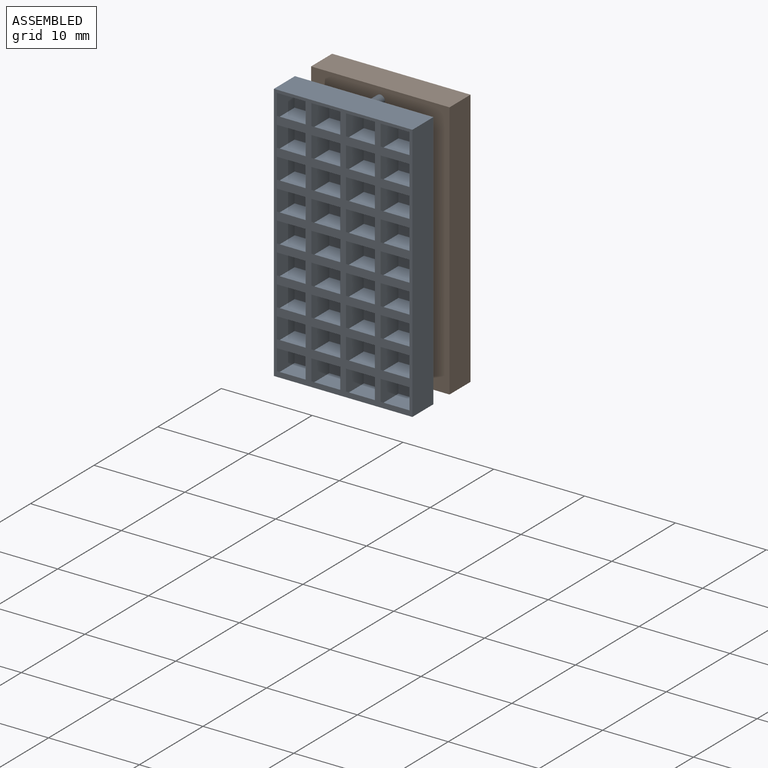
[diagram: assembled view]
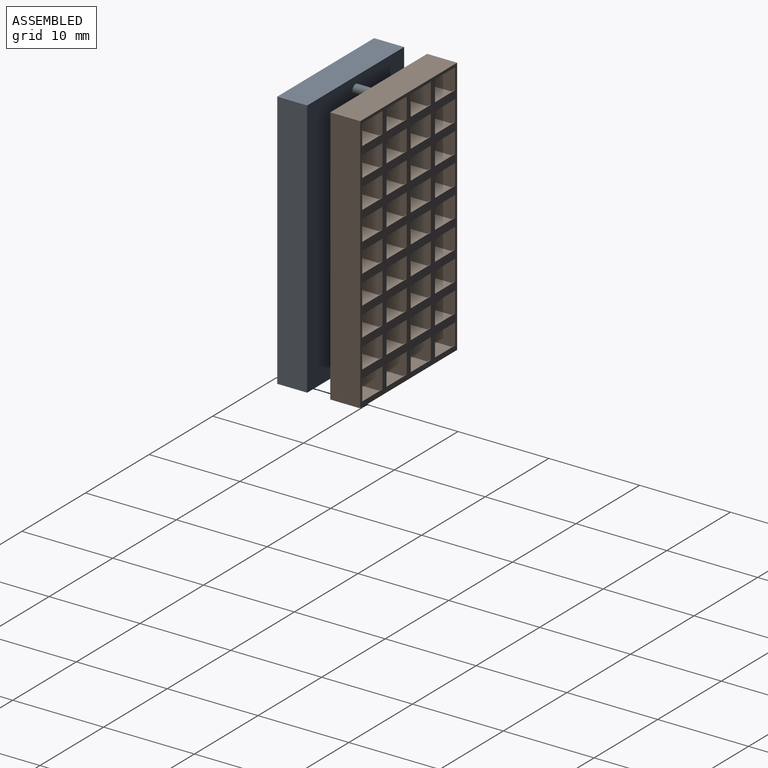
[diagram: assembled view, second angle]
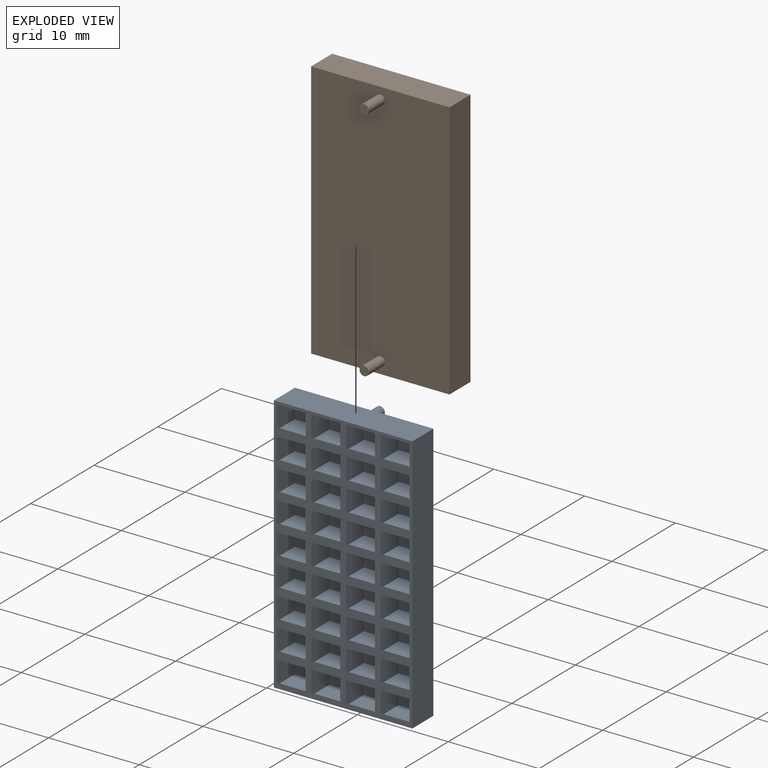
[diagram: exploded view]
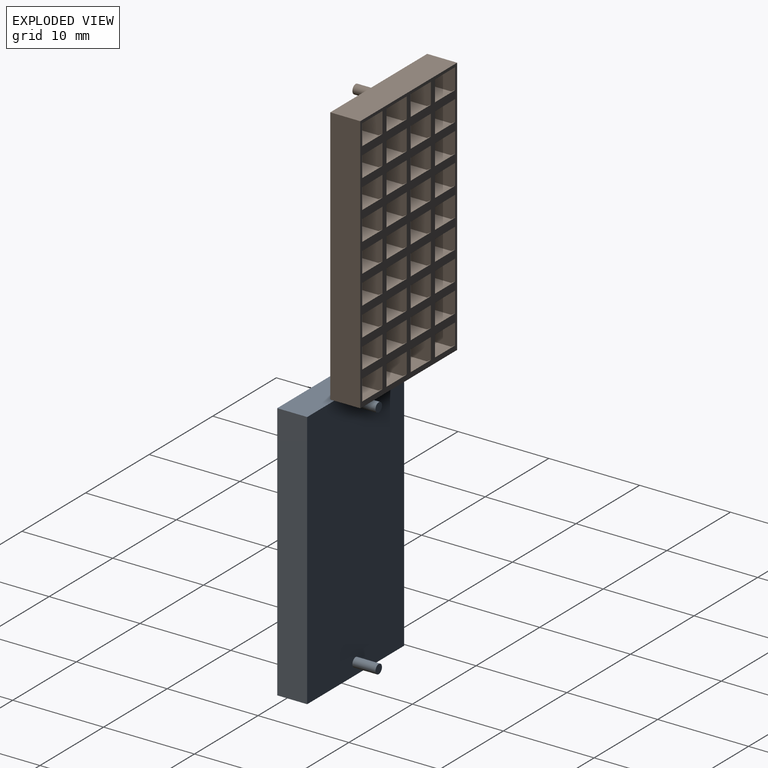
[diagram: exploded view, second angle]
ASSEMBLY  parts=2 mates=3
PART A: 226 faces, bbox 15.2x5.8x28.6 mm
  f0: plane 2.79x2.54mm, normal (1,0,0), area 7mm2, adj f2,f3,f6,f8,f9
  f1: plane 2.79x2.54mm, normal (-1,0,0), area 7mm2, adj f2,f3,f6,f8,f9
  f2: plane 3.18x2.79mm, normal (0,0,-1), area 8.9mm2, adj f0,f1,f6,f9
  f3: plane 3.18x2.35mm, normal (0,0,1), area 7.5mm2, adj f0,f1,f8,f9
  f4: plane 28.58x3.3mm, normal (-1,0,0), area 94.4mm2, adj f5,f6,f7,f117
  f5: plane 15.24x3.3mm, normal (0,0,1), area 50.3mm2, adj f4,f6,f7,f26
  f6: plane 28.58x15.24mm, normal (0,-1,0), area 174.2mm2, adj f0,f1,f2,f4,f5,f8,f10,f11
  f7: plane 28.58x15.24mm, normal (0,1,0), area 433.9mm2, adj f4,f5,f26,f117,f222,f224
  f8: plane 3.18x0.44mm, normal (0,0.5,0.87), area 1.6mm2, adj f0,f1,f3,f6
  f9: plane 3.18x2.54mm, normal (0,-1,0), area 8.1mm2, adj f0,f1,f2,f3
  f10: plane 2.79x2.54mm, normal (1,0,0), area 7mm2, adj f6,f12,f13,f14,f15
  f11: plane 2.79x2.54mm, normal (-1,0,0), area 7mm2, adj f6,f12,f13,f14,f15
  f12: plane 3.18x2.79mm, normal (0,0,-1), area 8.9mm2, adj f6,f10,f11,f15
  f13: plane 3.18x2.35mm, normal (0,0,1), area 7.5mm2, adj f10,f11,f14,f15
  f14: plane 3.18x0.44mm, normal (0,0.5,0.87), area 1.6mm2, adj f6,f10,f11,f13
  f15: plane 3.18x2.54mm, normal (0,-1,0), area 8.1mm2, adj f10,f11,f12,f13
  f16: plane 2.79x2.54mm, normal (1,0,0), area 7mm2, adj f6,f18,f19,f20,f21
  f17: plane 2.79x2.54mm, normal (-1,0,0), area 7mm2, adj f6,f18,f19,f20,f21
  f18: plane 3.18x2.79mm, normal (0,0,-1), area 8.9mm2, adj f6,f16,f17,f21
  f19: plane 3.18x2.35mm, normal (0,0,1), area 7.5mm2, adj f16,f17,f20,f21
  f20: plane 3.18x0.44mm, normal (0,0.5,0.87), area 1.6mm2, adj f6,f16,f17,f19
  f21: plane 3.18x2.54mm, normal (0,-1,0), area 8.1mm2, adj f16,f17,f18,f19
  f22: plane 2.79x2.54mm, normal (1,0,0), area 7mm2, adj f6,f24,f25,f27,f28
  f23: plane 2.79x2.54mm, normal (-1,0,0), area 7mm2, adj f6,f24,f25,f27,f28
  f24: plane 3.18x2.79mm, normal (0,0,-1), area 8.9mm2, adj f6,f22,f23,f28
  f25: plane 3.18x2.35mm, normal (0,0,1), area 7.5mm2, adj f22,f23,f27,f28
  f26: plane 28.58x3.3mm, normal (1,0,0), area 94.4mm2, adj f5,f6,f7,f117
  f27: plane 3.18x0.44mm, normal (0,0.5,0.87), area 1.6mm2, adj f6,f22,f23,f25
  f28: plane 3.18x2.54mm, normal (0,-1,0), area 8.1mm2, adj f22,f23,f24,f25
  f29: plane 2.79x2.54mm, normal (1,0,0), area 7mm2, adj f6,f31,f32,f33,f221
  f30: plane 2.79x2.54mm, normal (-1,0,0), area 7mm2, adj f6,f31,f32,f33,f221
  f31: plane 3.18x2.79mm, normal (0,0,-1), area 8.9mm2, adj f6,f29,f30,f221
  f32: plane 3.18x2.35mm, normal (0,0,1), area 7.5mm2, adj f29,f30,f33,f221
  f33: plane 3.18x0.44mm, normal (0,0.5,0.87), area 1.6mm2, adj f6,f29,f30,f32
  f34: plane 3.18x2.54mm, normal (0,-1,0), area 8.1mm2, adj f217,f218,f219,f220
  f35: plane 2.79x2.54mm, normal (1,0,0), area 7mm2, adj f6,f37,f38,f39,f215
  f36: plane 2.79x2.54mm, normal (-1,0,0), area 7mm2, adj f6,f37,f38,f39,f215
  f37: plane 3.18x2.79mm, normal (0,0,-1), area 8.9mm2, adj f6,f35,f36,f215
  f38: plane 3.18x2.35mm, normal (0,0,1), area 7.5mm2, adj f35,f36,f39,f215
  f39: plane 3.18x0.44mm, normal (0,0.5,0.87), area 1.6mm2, adj f6,f35,f36,f38
  f40: plane 3.18x2.54mm, normal (0,-1,0), area 8.1mm2, adj f211,f212,f213,f214
  f41: plane 2.79x2.54mm, normal (1,0,0), area 7mm2, adj f6,f43,f44,f45,f209
  f42: plane 2.79x2.54mm, normal (-1,0,0), area 7mm2, adj f6,f43,f44,f45,f209
  f43: plane 3.18x2.79mm, normal (0,0,-1), area 8.9mm2, adj f6,f41,f42,f209
  f44: plane 3.18x2.35mm, normal (0,0,1), area 7.5mm2, adj f41,f42,f45,f209
  f45: plane 3.18x0.44mm, normal (0,0.5,0.87), area 1.6mm2, adj f6,f41,f42,f44
  f46: plane 3.18x2.54mm, normal (0,-1,0), area 8.1mm2, adj f205,f206,f207,f208
  f47: plane 2.79x2.54mm, normal (1,0,0), area 7mm2, adj f6,f49,f50,f51,f203
  f48: plane 2.79x2.54mm, normal (-1,0,0), area 7mm2, adj f6,f49,f50,f51,f203
  f49: plane 3.18x2.79mm, normal (0,0,-1), area 8.9mm2, adj f6,f47,f48,f203
  f50: plane 3.18x2.35mm, normal (0,0,1), area 7.5mm2, adj f47,f48,f51,f203
  f51: plane 3.18x0.44mm, normal (0,0.5,0.87), area 1.6mm2, adj f6,f47,f48,f50
  f52: plane 3.18x2.54mm, normal (0,-1,0), area 8.1mm2, adj f199,f200,f201,f202
  f53: plane 2.79x2.54mm, normal (1,0,0), area 7mm2, adj f6,f55,f56,f57,f197
  f54: plane 2.79x2.54mm, normal (-1,0,0), area 7mm2, adj f6,f55,f56,f57,f197
  f55: plane 3.18x2.79mm, normal (0,0,-1), area 8.9mm2, adj f6,f53,f54,f197
  f56: plane 3.18x2.35mm, normal (0,0,1), area 7.5mm2, adj f53,f54,f57,f197
  f57: plane 3.18x0.44mm, normal (0,0.5,0.87), area 1.6mm2, adj f6,f53,f54,f56
  f58: plane 3.18x2.54mm, normal (0,-1,0), area 8.1mm2, adj f193,f194,f195,f196
  f59: plane 2.79x2.54mm, normal (1,0,0), area 7mm2, adj f6,f61,f62,f63,f191
  f60: plane 2.79x2.54mm, normal (-1,0,0), area 7mm2, adj f6,f61,f62,f63,f191
  f61: plane 3.18x2.79mm, normal (0,0,-1), area 8.9mm2, adj f6,f59,f60,f191
  f62: plane 3.18x2.35mm, normal (0,0,1), area 7.5mm2, adj f59,f60,f63,f191
  f63: plane 3.18x0.44mm, normal (0,0.5,0.87), area 1.6mm2, adj f6,f59,f60,f62
  f64: plane 3.18x2.54mm, normal (0,-1,0), area 8.1mm2, adj f187,f188,f189,f190
  f65: plane 2.79x2.54mm, normal (1,0,0), area 7mm2, adj f6,f67,f68,f69,f185
  f66: plane 2.79x2.54mm, normal (-1,0,0), area 7mm2, adj f6,f67,f68,f69,f185
  f67: plane 3.18x2.79mm, normal (0,0,-1), area 8.9mm2, adj f6,f65,f66,f185
  f68: plane 3.18x2.35mm, normal (0,0,1), area 7.5mm2, adj f65,f66,f69,f185
  f69: plane 3.18x0.44mm, normal (0,0.5,0.87), area 1.6mm2, adj f6,f65,f66,f68
  f70: plane 3.18x2.54mm, normal (0,-1,0), area 8.1mm2, adj f181,f182,f183,f184
  f71: plane 2.79x2.54mm, normal (1,0,0), area 7mm2, adj f6,f73,f74,f75,f179
  f72: plane 2.79x2.54mm, normal (-1,0,0), area 7mm2, adj f6,f73,f74,f75,f179
  f73: plane 3.18x2.79mm, normal (0,0,-1), area 8.9mm2, adj f6,f71,f72,f179
  f74: plane 3.18x2.35mm, normal (0,0,1), area 7.5mm2, adj f71,f72,f75,f179
  f75: plane 3.18x0.44mm, normal (0,0.5,0.87), area 1.6mm2, adj f6,f71,f72,f74
  f76: plane 3.18x2.54mm, normal (0,-1,0), area 8.1mm2, adj f175,f176,f177,f178
  f77: plane 2.79x2.54mm, normal (1,0,0), area 7mm2, adj f6,f79,f80,f81,f173
  f78: plane 2.79x2.54mm, normal (-1,0,0), area 7mm2, adj f6,f79,f80,f81,f173
  f79: plane 3.18x2.79mm, normal (0,0,-1), area 8.9mm2, adj f6,f77,f78,f173
  f80: plane 3.18x2.35mm, normal (0,0,1), area 7.5mm2, adj f77,f78,f81,f173
  f81: plane 3.18x0.44mm, normal (0,0.5,0.87), area 1.6mm2, adj f6,f77,f78,f80
  f82: plane 3.18x2.54mm, normal (0,-1,0), area 8.1mm2, adj f169,f170,f171,f172
  f83: plane 2.79x2.54mm, normal (1,0,0), area 7mm2, adj f6,f85,f86,f87,f167
  f84: plane 2.79x2.54mm, normal (-1,0,0), area 7mm2, adj f6,f85,f86,f87,f167
  f85: plane 3.18x2.79mm, normal (0,0,-1), area 8.9mm2, adj f6,f83,f84,f167
  f86: plane 3.18x2.35mm, normal (0,0,1), area 7.5mm2, adj f83,f84,f87,f167
  f87: plane 3.18x0.44mm, normal (0,0.5,0.87), area 1.6mm2, adj f6,f83,f84,f86
  f88: plane 3.18x2.54mm, normal (0,-1,0), area 8.1mm2, adj f163,f164,f165,f166
  f89: plane 2.79x2.54mm, normal (1,0,0), area 7mm2, adj f6,f91,f92,f93,f161
  f90: plane 2.79x2.54mm, normal (-1,0,0), area 7mm2, adj f6,f91,f92,f93,f161
  f91: plane 3.18x2.79mm, normal (0,0,-1), area 8.9mm2, adj f6,f89,f90,f161
  f92: plane 3.18x2.35mm, normal (0,0,1), area 7.5mm2, adj f89,f90,f93,f161
  f93: plane 3.18x0.44mm, normal (0,0.5,0.87), area 1.6mm2, adj f6,f89,f90,f92
  f94: plane 3.18x2.54mm, normal (0,-1,0), area 8.1mm2, adj f157,f158,f159,f160
  f95: plane 2.79x2.54mm, normal (1,0,0), area 7mm2, adj f6,f97,f98,f99,f155
  f96: plane 2.79x2.54mm, normal (-1,0,0), area 7mm2, adj f6,f97,f98,f99,f155
  f97: plane 3.18x2.79mm, normal (0,0,-1), area 8.9mm2, adj f6,f95,f96,f155
  f98: plane 3.18x2.35mm, normal (0,0,1), area 7.5mm2, adj f95,f96,f99,f155
  f99: plane 3.18x0.44mm, normal (0,0.5,0.87), area 1.6mm2, adj f6,f95,f96,f98
  f100: plane 3.18x2.54mm, normal (0,-1,0), area 8.1mm2, adj f151,f152,f153,f154
  f101: plane 2.79x2.54mm, normal (1,0,0), area 7mm2, adj f6,f103,f104,f105,f149
  f102: plane 2.79x2.54mm, normal (-1,0,0), area 7mm2, adj f6,f103,f104,f105,f149
  f103: plane 3.18x2.79mm, normal (0,0,-1), area 8.9mm2, adj f6,f101,f102,f149
  f104: plane 3.18x2.35mm, normal (0,0,1), area 7.5mm2, adj f101,f102,f105,f149
  f105: plane 3.18x0.44mm, normal (0,0.5,0.87), area 1.6mm2, adj f6,f101,f102,f104
  f106: plane 3.18x2.54mm, normal (0,-1,0), area 8.1mm2, adj f145,f146,f147,f148
  f107: plane 2.79x2.54mm, normal (1,0,0), area 7mm2, adj f6,f109,f110,f111,f143
  f108: plane 2.79x2.54mm, normal (-1,0,0), area 7mm2, adj f6,f109,f110,f111,f143
  f109: plane 3.18x2.79mm, normal (0,0,-1), area 8.9mm2, adj f6,f107,f108,f143
  f110: plane 3.18x2.35mm, normal (0,0,1), area 7.5mm2, adj f107,f108,f111,f143
  f111: plane 3.18x0.44mm, normal (0,0.5,0.87), area 1.6mm2, adj f6,f107,f108,f110
  f112: plane 3.18x2.54mm, normal (0,-1,0), area 8.1mm2, adj f139,f140,f141,f142
  f113: plane 2.79x2.54mm, normal (1,0,0), area 7mm2, adj f6,f115,f116,f118,f137
  f114: plane 2.79x2.54mm, normal (-1,0,0), area 7mm2, adj f6,f115,f116,f118,f137
  f115: plane 3.18x2.79mm, normal (0,0,-1), area 8.9mm2, adj f6,f113,f114,f137
  f116: plane 3.18x2.35mm, normal (0,0,1), area 7.5mm2, adj f113,f114,f118,f137
  f117: plane 15.24x3.3mm, normal (0,0,-1), area 50.3mm2, adj f4,f6,f7,f26
  f118: plane 3.18x0.44mm, normal (0,0.5,0.87), area 1.6mm2, adj f6,f113,f114,f116
  f119: plane 3.18x2.54mm, normal (0,-1,0), area 8.1mm2, adj f133,f134,f135,f136
  f120: plane 2.79x2.54mm, normal (1,0,0), area 7mm2, adj f6,f122,f123,f124,f131
  f121: plane 2.79x2.54mm, normal (-1,0,0), area 7mm2, adj f6,f122,f123,f124,f131
  f122: plane 3.18x2.79mm, normal (0,0,-1), area 8.9mm2, adj f6,f120,f121,f131
  f123: plane 3.18x2.35mm, normal (0,0,1), area 7.5mm2, adj f120,f121,f124,f131
  f124: plane 3.18x0.44mm, normal (0,0.5,0.87), area 1.6mm2, adj f6,f120,f121,f123
  f125: plane 3.18x2.54mm, normal (0,-1,0), area 8.1mm2, adj f127,f128,f129,f130
  f126: plane 3.18x0.44mm, normal (0,0.5,0.87), area 1.6mm2, adj f6,f127,f129,f130
  f127: plane 3.18x2.35mm, normal (0,0,1), area 7.5mm2, adj f125,f126,f129,f130
  f128: plane 3.18x2.79mm, normal (0,0,-1), area 8.9mm2, adj f6,f125,f129,f130
  f129: plane 2.79x2.54mm, normal (-1,0,0), area 7mm2, adj f6,f125,f126,f127,f128
  f130: plane 2.79x2.54mm, normal (1,0,0), area 7mm2, adj f6,f125,f126,f127,f128
  f131: plane 3.18x2.54mm, normal (0,-1,0), area 8.1mm2, adj f120,f121,f122,f123
  f132: plane 3.18x0.44mm, normal (0,0.5,0.87), area 1.6mm2, adj f6,f133,f135,f136
  f133: plane 3.18x2.35mm, normal (0,0,1), area 7.5mm2, adj f119,f132,f135,f136
  f134: plane 3.18x2.79mm, normal (0,0,-1), area 8.9mm2, adj f6,f119,f135,f136
  f135: plane 2.79x2.54mm, normal (-1,0,0), area 7mm2, adj f6,f119,f132,f133,f134
  f136: plane 2.79x2.54mm, normal (1,0,0), area 7mm2, adj f6,f119,f132,f133,f134
  f137: plane 3.18x2.54mm, normal (0,-1,0), area 8.1mm2, adj f113,f114,f115,f116
  f138: plane 3.18x0.44mm, normal (0,0.5,0.87), area 1.6mm2, adj f6,f139,f141,f142
  f139: plane 3.18x2.35mm, normal (0,0,1), area 7.5mm2, adj f112,f138,f141,f142
  f140: plane 3.18x2.79mm, normal (0,0,-1), area 8.9mm2, adj f6,f112,f141,f142
  f141: plane 2.79x2.54mm, normal (-1,0,0), area 7mm2, adj f6,f112,f138,f139,f140
  f142: plane 2.79x2.54mm, normal (1,0,0), area 7mm2, adj f6,f112,f138,f139,f140
  f143: plane 3.18x2.54mm, normal (0,-1,0), area 8.1mm2, adj f107,f108,f109,f110
  f144: plane 3.18x0.44mm, normal (0,0.5,0.87), area 1.6mm2, adj f6,f145,f147,f148
  f145: plane 3.18x2.35mm, normal (0,0,1), area 7.5mm2, adj f106,f144,f147,f148
  f146: plane 3.18x2.79mm, normal (0,0,-1), area 8.9mm2, adj f6,f106,f147,f148
  f147: plane 2.79x2.54mm, normal (-1,0,0), area 7mm2, adj f6,f106,f144,f145,f146
  f148: plane 2.79x2.54mm, normal (1,0,0), area 7mm2, adj f6,f106,f144,f145,f146
  f149: plane 3.18x2.54mm, normal (0,-1,0), area 8.1mm2, adj f101,f102,f103,f104
  f150: plane 3.18x0.44mm, normal (0,0.5,0.87), area 1.6mm2, adj f6,f151,f153,f154
  f151: plane 3.18x2.35mm, normal (0,0,1), area 7.5mm2, adj f100,f150,f153,f154
  f152: plane 3.18x2.79mm, normal (0,0,-1), area 8.9mm2, adj f6,f100,f153,f154
  f153: plane 2.79x2.54mm, normal (-1,0,0), area 7mm2, adj f6,f100,f150,f151,f152
  f154: plane 2.79x2.54mm, normal (1,0,0), area 7mm2, adj f6,f100,f150,f151,f152
  f155: plane 3.18x2.54mm, normal (0,-1,0), area 8.1mm2, adj f95,f96,f97,f98
  f156: plane 3.18x0.44mm, normal (0,0.5,0.87), area 1.6mm2, adj f6,f157,f159,f160
  f157: plane 3.18x2.35mm, normal (0,0,1), area 7.5mm2, adj f94,f156,f159,f160
  f158: plane 3.18x2.79mm, normal (0,0,-1), area 8.9mm2, adj f6,f94,f159,f160
  f159: plane 2.79x2.54mm, normal (-1,0,0), area 7mm2, adj f6,f94,f156,f157,f158
  f160: plane 2.79x2.54mm, normal (1,0,0), area 7mm2, adj f6,f94,f156,f157,f158
  f161: plane 3.18x2.54mm, normal (0,-1,0), area 8.1mm2, adj f89,f90,f91,f92
  f162: plane 3.18x0.44mm, normal (0,0.5,0.87), area 1.6mm2, adj f6,f163,f165,f166
  f163: plane 3.18x2.35mm, normal (0,0,1), area 7.5mm2, adj f88,f162,f165,f166
  f164: plane 3.18x2.79mm, normal (0,0,-1), area 8.9mm2, adj f6,f88,f165,f166
  f165: plane 2.79x2.54mm, normal (-1,0,0), area 7mm2, adj f6,f88,f162,f163,f164
  f166: plane 2.79x2.54mm, normal (1,0,0), area 7mm2, adj f6,f88,f162,f163,f164
  f167: plane 3.18x2.54mm, normal (0,-1,0), area 8.1mm2, adj f83,f84,f85,f86
  f168: plane 3.18x0.44mm, normal (0,0.5,0.87), area 1.6mm2, adj f6,f169,f171,f172
  f169: plane 3.18x2.35mm, normal (0,0,1), area 7.5mm2, adj f82,f168,f171,f172
  f170: plane 3.18x2.79mm, normal (0,0,-1), area 8.9mm2, adj f6,f82,f171,f172
  f171: plane 2.79x2.54mm, normal (-1,0,0), area 7mm2, adj f6,f82,f168,f169,f170
  f172: plane 2.79x2.54mm, normal (1,0,0), area 7mm2, adj f6,f82,f168,f169,f170
  f173: plane 3.18x2.54mm, normal (0,-1,0), area 8.1mm2, adj f77,f78,f79,f80
  f174: plane 3.18x0.44mm, normal (0,0.5,0.87), area 1.6mm2, adj f6,f175,f177,f178
  f175: plane 3.18x2.35mm, normal (0,0,1), area 7.5mm2, adj f76,f174,f177,f178
  f176: plane 3.18x2.79mm, normal (0,0,-1), area 8.9mm2, adj f6,f76,f177,f178
  f177: plane 2.79x2.54mm, normal (-1,0,0), area 7mm2, adj f6,f76,f174,f175,f176
  f178: plane 2.79x2.54mm, normal (1,0,0), area 7mm2, adj f6,f76,f174,f175,f176
  f179: plane 3.18x2.54mm, normal (0,-1,0), area 8.1mm2, adj f71,f72,f73,f74
  f180: plane 3.18x0.44mm, normal (0,0.5,0.87), area 1.6mm2, adj f6,f181,f183,f184
  f181: plane 3.18x2.35mm, normal (0,0,1), area 7.5mm2, adj f70,f180,f183,f184
  f182: plane 3.18x2.79mm, normal (0,0,-1), area 8.9mm2, adj f6,f70,f183,f184
  f183: plane 2.79x2.54mm, normal (-1,0,0), area 7mm2, adj f6,f70,f180,f181,f182
  f184: plane 2.79x2.54mm, normal (1,0,0), area 7mm2, adj f6,f70,f180,f181,f182
  f185: plane 3.18x2.54mm, normal (0,-1,0), area 8.1mm2, adj f65,f66,f67,f68
  f186: plane 3.18x0.44mm, normal (0,0.5,0.87), area 1.6mm2, adj f6,f187,f189,f190
  f187: plane 3.18x2.35mm, normal (0,0,1), area 7.5mm2, adj f64,f186,f189,f190
  f188: plane 3.18x2.79mm, normal (0,0,-1), area 8.9mm2, adj f6,f64,f189,f190
  f189: plane 2.79x2.54mm, normal (-1,0,0), area 7mm2, adj f6,f64,f186,f187,f188
  f190: plane 2.79x2.54mm, normal (1,0,0), area 7mm2, adj f6,f64,f186,f187,f188
  f191: plane 3.18x2.54mm, normal (0,-1,0), area 8.1mm2, adj f59,f60,f61,f62
  f192: plane 3.18x0.44mm, normal (0,0.5,0.87), area 1.6mm2, adj f6,f193,f195,f196
  f193: plane 3.18x2.35mm, normal (0,0,1), area 7.5mm2, adj f58,f192,f195,f196
  f194: plane 3.18x2.79mm, normal (0,0,-1), area 8.9mm2, adj f6,f58,f195,f196
  f195: plane 2.79x2.54mm, normal (-1,0,0), area 7mm2, adj f6,f58,f192,f193,f194
  f196: plane 2.79x2.54mm, normal (1,0,0), area 7mm2, adj f6,f58,f192,f193,f194
  f197: plane 3.18x2.54mm, normal (0,-1,0), area 8.1mm2, adj f53,f54,f55,f56
  f198: plane 3.18x0.44mm, normal (0,0.5,0.87), area 1.6mm2, adj f6,f199,f201,f202
  f199: plane 3.18x2.35mm, normal (0,0,1), area 7.5mm2, adj f52,f198,f201,f202
  f200: plane 3.18x2.79mm, normal (0,0,-1), area 8.9mm2, adj f6,f52,f201,f202
  f201: plane 2.79x2.54mm, normal (-1,0,0), area 7mm2, adj f6,f52,f198,f199,f200
  f202: plane 2.79x2.54mm, normal (1,0,0), area 7mm2, adj f6,f52,f198,f199,f200
  f203: plane 3.18x2.54mm, normal (0,-1,0), area 8.1mm2, adj f47,f48,f49,f50
  f204: plane 3.18x0.44mm, normal (0,0.5,0.87), area 1.6mm2, adj f6,f205,f207,f208
  f205: plane 3.18x2.35mm, normal (0,0,1), area 7.5mm2, adj f46,f204,f207,f208
  f206: plane 3.18x2.79mm, normal (0,0,-1), area 8.9mm2, adj f6,f46,f207,f208
  f207: plane 2.79x2.54mm, normal (-1,0,0), area 7mm2, adj f6,f46,f204,f205,f206
  f208: plane 2.79x2.54mm, normal (1,0,0), area 7mm2, adj f6,f46,f204,f205,f206
  f209: plane 3.18x2.54mm, normal (0,-1,0), area 8.1mm2, adj f41,f42,f43,f44
  f210: plane 3.18x0.44mm, normal (0,0.5,0.87), area 1.6mm2, adj f6,f211,f213,f214
  f211: plane 3.18x2.35mm, normal (0,0,1), area 7.5mm2, adj f40,f210,f213,f214
  f212: plane 3.18x2.79mm, normal (0,0,-1), area 8.9mm2, adj f6,f40,f213,f214
  f213: plane 2.79x2.54mm, normal (-1,0,0), area 7mm2, adj f6,f40,f210,f211,f212
  f214: plane 2.79x2.54mm, normal (1,0,0), area 7mm2, adj f6,f40,f210,f211,f212
  f215: plane 3.18x2.54mm, normal (0,-1,0), area 8.1mm2, adj f35,f36,f37,f38
  f216: plane 3.18x0.44mm, normal (0,0.5,0.87), area 1.6mm2, adj f6,f217,f219,f220
  f217: plane 3.18x2.35mm, normal (0,0,1), area 7.5mm2, adj f34,f216,f219,f220
  f218: plane 3.18x2.79mm, normal (0,0,-1), area 8.9mm2, adj f6,f34,f219,f220
  f219: plane 2.79x2.54mm, normal (-1,0,0), area 7mm2, adj f6,f34,f216,f217,f218
  f220: plane 2.79x2.54mm, normal (1,0,0), area 7mm2, adj f6,f34,f216,f217,f218
  f221: plane 3.18x2.54mm, normal (0,-1,0), area 8.1mm2, adj f29,f30,f31,f32
  f222: cylinder r=0.51mm len=2.54mm, axis (0,-1,0), area 8.1mm2, adj f7,f223
  f223: plane 1.02x1.02mm, normal (0,1,0), area 0.8mm2, adj f222
  f224: cylinder r=0.51mm len=2.54mm, axis (0,-1,0), area 8.1mm2, adj f7,f225
  f225: plane 1.02x1.02mm, normal (0,1,0), area 0.8mm2, adj f224
PART B: same geometry as A
PLACE A t=(-6.98,-8.78,2.52)mm fixed
PLACE B rot(axis=(0,0,1),180deg) t=(4.45,-2.94,2.52)mm
MATE planar A.f7 <-> B.f222  axis (0,1,0) through (-1.26,-7.13,-10.18)mm
MATE cylindrical A.f224 <-> B.f224  axis (0,-1,0) through (-1.26,-5.86,-23.2)mm
MATE cylindrical B.f222 <-> A.f222  axis (0,1,0) through (-1.26,-5.86,2.84)mm
